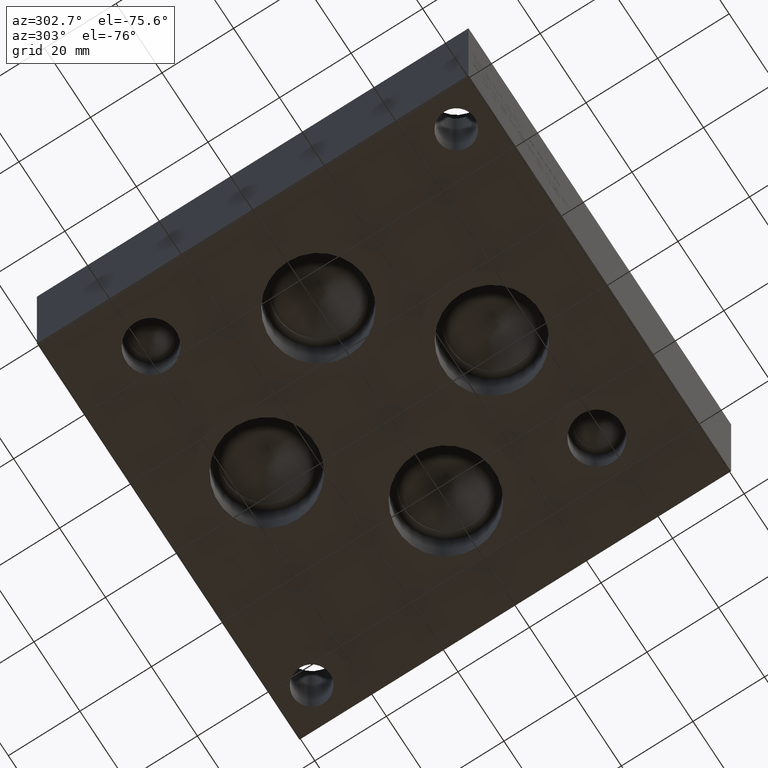
[diagram: clean part render]
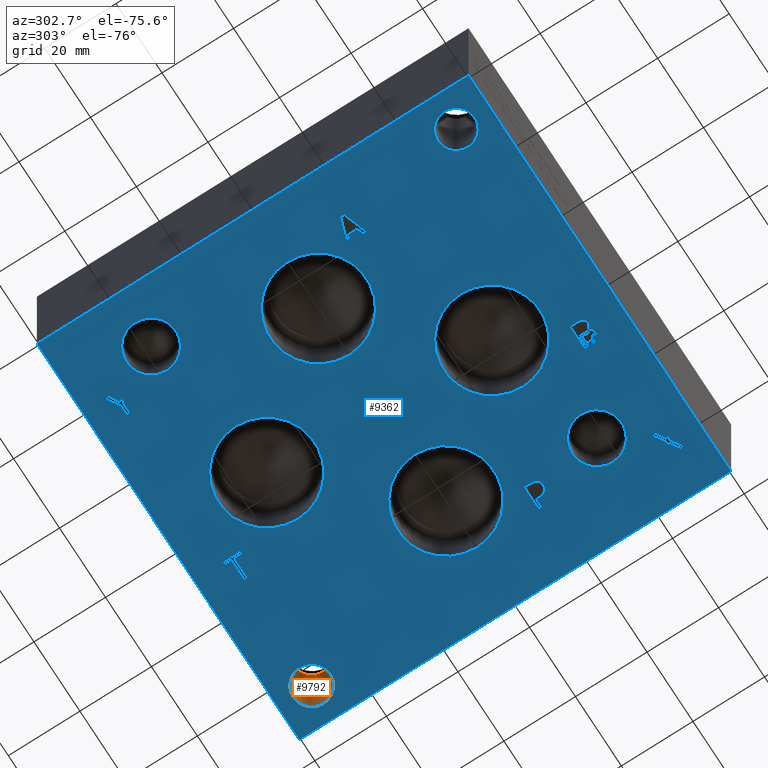
[diagram: same view with the hole feature highlighted: cylindrical wall and planar end face, labeled with their STEP entity ids]
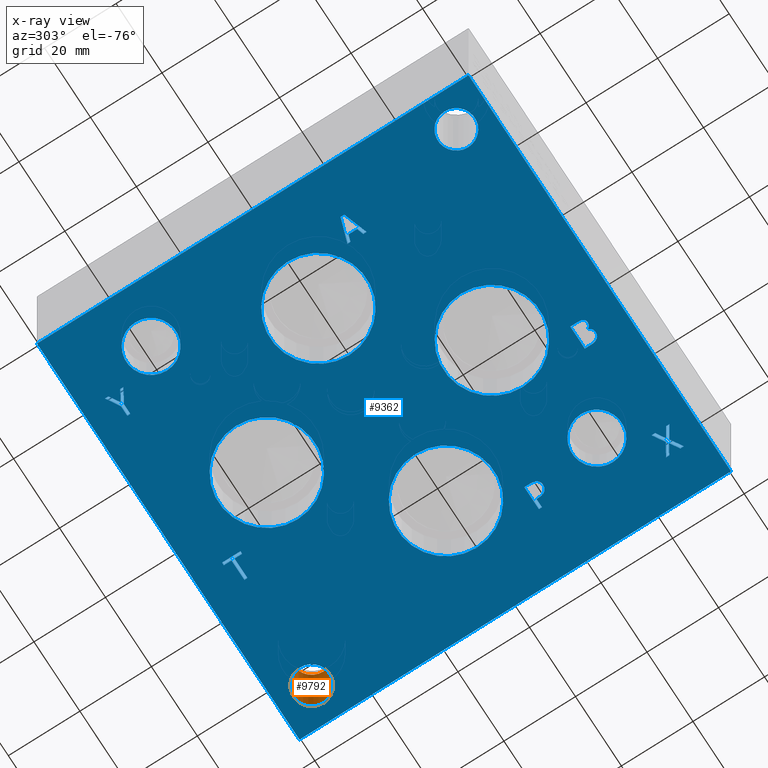
[diagram: x-ray of the same camera — body ghosted, the hole faces saturated]
A machine part, auxiliary view. The highlighted faces form one hole feature of diameter 10.3124 mm: the cylindrical wall (entity #9792, orange) and its adjacent planar end face (entity #9362, blue) — they share a circular edge in the B-rep.
The next image is the same camera in x-ray (body ghosted, the hole faces saturated) — the bore reads through the body.
Wall:
#43=CYLINDRICAL_SURFACE('',#10285,5.1562);
#73=CIRCLE('',#9870,5.1562);
#163=CIRCLE('',#10281,5.1562);
#1087=FACE_OUTER_BOUND('',#1640,.T.);
#1640=EDGE_LOOP('',(#8510,#8511,#8512,#8513));
#2642=LINE('',#16544,#3631);
#3631=VECTOR('',#12223,5.1562);
#3768=VERTEX_POINT('',#12797);
#4544=VERTEX_POINT('',#16535);
#4733=EDGE_CURVE('',#3768,#3768,#73,.T.);
#5876=EDGE_CURVE('',#4544,#4544,#163,.T.);
#5880=EDGE_CURVE('',#4544,#3768,#2642,.T.);
#8510=ORIENTED_EDGE('',*,*,#5876,.T.);
#8511=ORIENTED_EDGE('',*,*,#5880,.T.);
#8512=ORIENTED_EDGE('',*,*,#4733,.F.);
#8513=ORIENTED_EDGE('',*,*,#5880,.F.);
#9792=ADVANCED_FACE('',(#1087),#43,.F.);
#9870=AXIS2_PLACEMENT_3D('',#12798,#10551,#10552);
#10281=AXIS2_PLACEMENT_3D('',#16536,#12212,#12213);
#10285=AXIS2_PLACEMENT_3D('',#16543,#12221,#12222);
#10551=DIRECTION('center_axis',(0.,0.,1.));
#10552=DIRECTION('ref_axis',(1.,0.,0.));
#12212=DIRECTION('center_axis',(0.,0.,1.));
#12213=DIRECTION('ref_axis',(1.,0.,0.));
#12221=DIRECTION('center_axis',(0.,0.,1.));
#12222=DIRECTION('ref_axis',(1.,0.,0.));
#12223=DIRECTION('',(0.,0.,-1.));
#12797=CARTESIAN_POINT('',(99.6188,111.125,0.));
#12798=CARTESIAN_POINT('Origin',(104.775,111.125,0.));
#16535=CARTESIAN_POINT('',(99.6188,111.125,30.1752));
#16536=CARTESIAN_POINT('Origin',(104.775,111.125,30.1752));
#16543=CARTESIAN_POINT('Origin',(104.775,111.125,-127.58695823863));
#16544=CARTESIAN_POINT('',(99.6188,111.125,-127.58695823863));
End face:
#60=CIRCLE('',#9857,6.9342);
#61=CIRCLE('',#9858,6.9342);
#62=CIRCLE('',#9859,6.9342);
#63=CIRCLE('',#9860,6.9342);
#64=CIRCLE('',#9861,13.462);
#65=CIRCLE('',#9862,13.462);
#66=CIRCLE('',#9863,13.462);
#67=CIRCLE('',#9864,13.462);
#68=CIRCLE('',#9865,13.462);
#69=CIRCLE('',#9866,13.462);
#70=CIRCLE('',#9867,13.462);
#71=CIRCLE('',#9868,13.462);
#72=CIRCLE('',#9869,5.1562);
#73=CIRCLE('',#9870,5.1562);
#168=FACE_BOUND('',#1154,.T.);
#169=FACE_BOUND('',#1155,.T.);
#170=FACE_BOUND('',#1156,.T.);
#171=FACE_BOUND('',#1157,.T.);
#172=FACE_BOUND('',#1158,.T.);
#173=FACE_BOUND('',#1159,.T.);
#174=FACE_BOUND('',#1160,.T.);
#175=FACE_BOUND('',#1161,.T.);
#176=FACE_BOUND('',#1162,.T.);
#177=FACE_BOUND('',#1163,.T.);
#178=FACE_BOUND('',#1164,.T.);
#179=FACE_BOUND('',#1165,.T.);
#180=FACE_BOUND('',#1166,.T.);
#181=FACE_BOUND('',#1167,.T.);
#253=B_SPLINE_CURVE_WITH_KNOTS('',2,(#12617,#12618,#12619,#12620),
 .UNSPECIFIED.,.F.,.F.,(3,1,3),(0.,1.,2.),.UNSPECIFIED.);
#255=B_SPLINE_CURVE_WITH_KNOTS('',2,(#12644,#12645,#12646,#12647),
 .UNSPECIFIED.,.F.,.F.,(3,1,3),(0.,1.,2.),.UNSPECIFIED.);
#257=B_SPLINE_CURVE_WITH_KNOTS('',2,(#12663,#12664,#12665,#12666),
 .UNSPECIFIED.,.F.,.F.,(3,1,3),(0.,1.,2.),.UNSPECIFIED.);
#259=B_SPLINE_CURVE_WITH_KNOTS('',2,(#12682,#12683,#12684,#12685),
 .UNSPECIFIED.,.F.,.F.,(3,1,3),(0.,1.,2.),.UNSPECIFIED.);
#261=B_SPLINE_CURVE_WITH_KNOTS('',2,(#12719,#12720,#12721,#12722),
 .UNSPECIFIED.,.F.,.F.,(3,1,3),(0.,1.,2.),.UNSPECIFIED.);
#263=B_SPLINE_CURVE_WITH_KNOTS('',2,(#12737,#12738,#12739,#12740),
 .UNSPECIFIED.,.F.,.F.,(3,1,3),(0.,1.,2.),.UNSPECIFIED.);
#265=B_SPLINE_CURVE_WITH_KNOTS('',2,(#12801,#12802,#12803,#12804),
 .UNSPECIFIED.,.F.,.F.,(3,1,3),(0.,1.,2.),.UNSPECIFIED.);
#266=B_SPLINE_CURVE_WITH_KNOTS('',2,(#12806,#12807,#12808,#12809),
 .UNSPECIFIED.,.F.,.F.,(3,1,3),(0.,1.,2.),.UNSPECIFIED.);
#267=B_SPLINE_CURVE_WITH_KNOTS('',2,(#12811,#12812,#12813,#12814),
 .UNSPECIFIED.,.F.,.F.,(3,1,3),(0.,1.,2.),.UNSPECIFIED.);
#268=B_SPLINE_CURVE_WITH_KNOTS('',2,(#12825,#12826,#12827,#12828),
 .UNSPECIFIED.,.F.,.F.,(3,1,3),(0.,1.,2.),.UNSPECIFIED.);
#657=FACE_OUTER_BOUND('',#1153,.T.);
#1153=EDGE_LOOP('',(#6151,#6152,#6153,#6154));
#1154=EDGE_LOOP('',(#6155,#6156,#6157,#6158,#6159,#6160,#6161,#6162,#6163,
#6164,#6165,#6166));
#1155=EDGE_LOOP('',(#6167,#6168,#6169,#6170,#6171,#6172,#6173,#6174,#6175));
#1156=EDGE_LOOP('',(#6176,#6177,#6178,#6179,#6180,#6181,#6182,#6183));
#1157=EDGE_LOOP('',(#6184,#6185,#6186,#6187,#6188,#6189,#6190,#6191,#6192,
#6193));
#1158=EDGE_LOOP('',(#6194,#6195,#6196,#6197,#6198,#6199,#6200,#6201));
#1159=EDGE_LOOP('',(#6202,#6203));
#1160=EDGE_LOOP('',(#6204,#6205));
#1161=EDGE_LOOP('',(#6206,#6207));
#1162=EDGE_LOOP('',(#6208,#6209));
#1163=EDGE_LOOP('',(#6210,#6211));
#1164=EDGE_LOOP('',(#6212,#6213));
#1165=EDGE_LOOP('',(#6214));
#1166=EDGE_LOOP('',(#6215));
#1167=EDGE_LOOP('',(#6216,#6217,#6218,#6219,#6220,#6221,#6222,#6223,#6224));
#1659=LINE('',#12245,#2648);
#1663=LINE('',#12253,#2652);
#1666=LINE('',#12259,#2655);
#1669=LINE('',#12265,#2658);
#1672=LINE('',#12271,#2661);
#1675=LINE('',#12277,#2664);
#1678=LINE('',#12283,#2667);
#1681=LINE('',#12289,#2670);
#1684=LINE('',#12295,#2673);
#1687=LINE('',#12301,#2676);
#1690=LINE('',#12307,#2679);
#1693=LINE('',#12312,#2682);
#1695=LINE('',#12318,#2684);
#1699=LINE('',#12326,#2688);
#1702=LINE('',#12332,#2691);
#1705=LINE('',#12338,#2694);
#1708=LINE('',#12344,#2697);
#1711=LINE('',#12350,#2700);
#1714=LINE('',#12356,#2703);
#1717=LINE('',#12362,#2706);
#1720=LINE('',#12367,#2709);
#1722=LINE('',#12373,#2711);
#1726=LINE('',#12381,#2715);
#1729=LINE('',#12387,#2718);
#1732=LINE('',#12393,#2721);
#1735=LINE('',#12399,#2724);
#1738=LINE('',#12405,#2727);
#1741=LINE('',#12411,#2730);
#1744=LINE('',#12416,#2733);
#1774=LINE('',#12631,#2763);
#1780=LINE('',#12694,#2769);
#1783=LINE('',#12700,#2772);
#1786=LINE('',#12706,#2775);
#1790=LINE('',#12749,#2779);
#1791=LINE('',#12751,#2780);
#1792=LINE('',#12753,#2781);
#1793=LINE('',#12754,#2782);
#1794=LINE('',#12757,#2783);
#1795=LINE('',#12759,#2784);
#1796=LINE('',#12761,#2785);
#1797=LINE('',#12763,#2786);
#1798=LINE('',#12765,#2787);
#1799=LINE('',#12767,#2788);
#1800=LINE('',#12769,#2789);
#1801=LINE('',#12770,#2790);
#1802=LINE('',#12816,#2791);
#1803=LINE('',#12818,#2792);
#1804=LINE('',#12820,#2793);
#1805=LINE('',#12822,#2794);
#1806=LINE('',#12824,#2795);
#2648=VECTOR('',#10296,10.);
#2652=VECTOR('',#10302,10.);
#2655=VECTOR('',#10307,10.);
#2658=VECTOR('',#10312,10.);
#2661=VECTOR('',#10317,10.);
#2664=VECTOR('',#10322,10.);
#2667=VECTOR('',#10327,10.);
#2670=VECTOR('',#10332,10.);
#2673=VECTOR('',#10337,10.);
#2676=VECTOR('',#10342,10.);
#2679=VECTOR('',#10347,10.);
#2682=VECTOR('',#10352,10.);
#2684=VECTOR('',#10358,10.);
#2688=VECTOR('',#10364,10.);
#2691=VECTOR('',#10369,10.);
#2694=VECTOR('',#10374,10.);
#2697=VECTOR('',#10379,10.);
#2700=VECTOR('',#10384,10.);
#2703=VECTOR('',#10389,10.);
#2706=VECTOR('',#10394,10.);
#2709=VECTOR('',#10399,10.);
#2711=VECTOR('',#10405,10.);
#2715=VECTOR('',#10411,10.);
#2718=VECTOR('',#10416,10.);
#2721=VECTOR('',#10421,10.);
#2724=VECTOR('',#10426,10.);
#2727=VECTOR('',#10431,10.);
#2730=VECTOR('',#10436,10.);
#2733=VECTOR('',#10441,10.);
#2763=VECTOR('',#10487,10.);
#2769=VECTOR('',#10495,10.);
#2772=VECTOR('',#10500,10.);
#2775=VECTOR('',#10505,10.);
#2779=VECTOR('',#10513,10.);
#2780=VECTOR('',#10514,10.);
#2781=VECTOR('',#10515,10.);
#2782=VECTOR('',#10516,10.);
#2783=VECTOR('',#10517,10.);
#2784=VECTOR('',#10518,10.);
#2785=VECTOR('',#10519,10.);
#2786=VECTOR('',#10520,10.);
#2787=VECTOR('',#10521,10.);
#2788=VECTOR('',#10522,10.);
#2789=VECTOR('',#10523,10.);
#2790=VECTOR('',#10524,10.);
#2791=VECTOR('',#10553,10.);
#2792=VECTOR('',#10554,10.);
#2793=VECTOR('',#10555,10.);
#2794=VECTOR('',#10556,10.);
#2795=VECTOR('',#10557,10.);
#3637=VERTEX_POINT('',#12243);
#3638=VERTEX_POINT('',#12244);
#3641=VERTEX_POINT('',#12252);
#3643=VERTEX_POINT('',#12258);
#3645=VERTEX_POINT('',#12264);
#3647=VERTEX_POINT('',#12270);
#3649=VERTEX_POINT('',#12276);
#3651=VERTEX_POINT('',#12282);
#3653=VERTEX_POINT('',#12288);
#3655=VERTEX_POINT('',#12294);
#3657=VERTEX_POINT('',#12300);
#3659=VERTEX_POINT('',#12306);
#3661=VERTEX_POINT('',#12316);
#3662=VERTEX_POINT('',#12317);
#3665=VERTEX_POINT('',#12325);
#3667=VERTEX_POINT('',#12331);
#3669=VERTEX_POINT('',#12337);
#3671=VERTEX_POINT('',#12343);
#3673=VERTEX_POINT('',#12349);
#3675=VERTEX_POINT('',#12355);
#3677=VERTEX_POINT('',#12361);
#3679=VERTEX_POINT('',#12371);
#3680=VERTEX_POINT('',#12372);
#3683=VERTEX_POINT('',#12380);
#3685=VERTEX_POINT('',#12386);
#3687=VERTEX_POINT('',#12392);
#3689=VERTEX_POINT('',#12398);
#3691=VERTEX_POINT('',#12404);
#3693=VERTEX_POINT('',#12410);
#3723=VERTEX_POINT('',#12615);
#3724=VERTEX_POINT('',#12616);
#3727=VERTEX_POINT('',#12630);
#3729=VERTEX_POINT('',#12643);
#3731=VERTEX_POINT('',#12662);
#3733=VERTEX_POINT('',#12681);
#3735=VERTEX_POINT('',#12693);
#3737=VERTEX_POINT('',#12699);
#3739=VERTEX_POINT('',#12705);
#3741=VERTEX_POINT('',#12718);
#3743=VERTEX_POINT('',#12747);
#3744=VERTEX_POINT('',#12748);
#3745=VERTEX_POINT('',#12750);
#3746=VERTEX_POINT('',#12752);
#3747=VERTEX_POINT('',#12755);
#3748=VERTEX_POINT('',#12756);
#3749=VERTEX_POINT('',#12758);
#3750=VERTEX_POINT('',#12760);
#3751=VERTEX_POINT('',#12762);
#3752=VERTEX_POINT('',#12764);
#3753=VERTEX_POINT('',#12766);
#3754=VERTEX_POINT('',#12768);
#3755=VERTEX_POINT('',#12771);
#3756=VERTEX_POINT('',#12772);
#3757=VERTEX_POINT('',#12775);
#3758=VERTEX_POINT('',#12776);
#3759=VERTEX_POINT('',#12779);
#3760=VERTEX_POINT('',#12780);
#3761=VERTEX_POINT('',#12783);
#3762=VERTEX_POINT('',#12784);
#3763=VERTEX_POINT('',#12787);
#3764=VERTEX_POINT('',#12788);
#3765=VERTEX_POINT('',#12791);
#3766=VERTEX_POINT('',#12792);
#3767=VERTEX_POINT('',#12795);
#3768=VERTEX_POINT('',#12797);
#3769=VERTEX_POINT('',#12799);
#3770=VERTEX_POINT('',#12800);
#3771=VERTEX_POINT('',#12805);
#3772=VERTEX_POINT('',#12810);
#3773=VERTEX_POINT('',#12815);
#3774=VERTEX_POINT('',#12817);
#3775=VERTEX_POINT('',#12819);
#3776=VERTEX_POINT('',#12821);
#3777=VERTEX_POINT('',#12823);
#4549=EDGE_CURVE('',#3637,#3638,#1659,.T.);
#4553=EDGE_CURVE('',#3641,#3637,#1663,.T.);
#4556=EDGE_CURVE('',#3643,#3641,#1666,.T.);
#4559=EDGE_CURVE('',#3645,#3643,#1669,.T.);
#4562=EDGE_CURVE('',#3647,#3645,#1672,.T.);
#4565=EDGE_CURVE('',#3649,#3647,#1675,.T.);
#4568=EDGE_CURVE('',#3651,#3649,#1678,.T.);
#4571=EDGE_CURVE('',#3653,#3651,#1681,.T.);
#4574=EDGE_CURVE('',#3655,#3653,#1684,.T.);
#4577=EDGE_CURVE('',#3657,#3655,#1687,.T.);
#4580=EDGE_CURVE('',#3659,#3657,#1690,.T.);
#4583=EDGE_CURVE('',#3638,#3659,#1693,.T.);
#4585=EDGE_CURVE('',#3661,#3662,#1695,.T.);
#4589=EDGE_CURVE('',#3665,#3661,#1699,.T.);
#4592=EDGE_CURVE('',#3667,#3665,#1702,.T.);
#4595=EDGE_CURVE('',#3669,#3667,#1705,.T.);
#4598=EDGE_CURVE('',#3671,#3669,#1708,.T.);
#4601=EDGE_CURVE('',#3673,#3671,#1711,.T.);
#4604=EDGE_CURVE('',#3675,#3673,#1714,.T.);
#4607=EDGE_CURVE('',#3677,#3675,#1717,.T.);
#4610=EDGE_CURVE('',#3662,#3677,#1720,.T.);
#4612=EDGE_CURVE('',#3679,#3680,#1722,.T.);
#4616=EDGE_CURVE('',#3683,#3679,#1726,.T.);
#4619=EDGE_CURVE('',#3685,#3683,#1729,.T.);
#4622=EDGE_CURVE('',#3687,#3685,#1732,.T.);
#4625=EDGE_CURVE('',#3689,#3687,#1735,.T.);
#4628=EDGE_CURVE('',#3691,#3689,#1738,.T.);
#4631=EDGE_CURVE('',#3693,#3691,#1741,.T.);
#4634=EDGE_CURVE('',#3680,#3693,#1744,.T.);
#4678=EDGE_CURVE('',#3723,#3724,#253,.T.);
#4682=EDGE_CURVE('',#3727,#3723,#1774,.T.);
#4685=EDGE_CURVE('',#3729,#3727,#255,.T.);
#4688=EDGE_CURVE('',#3731,#3729,#257,.T.);
#4691=EDGE_CURVE('',#3733,#3731,#259,.T.);
#4694=EDGE_CURVE('',#3735,#3733,#1780,.T.);
#4697=EDGE_CURVE('',#3737,#3735,#1783,.T.);
#4700=EDGE_CURVE('',#3739,#3737,#1786,.T.);
#4703=EDGE_CURVE('',#3741,#3739,#261,.T.);
#4706=EDGE_CURVE('',#3724,#3741,#263,.T.);
#4708=EDGE_CURVE('',#3743,#3744,#1790,.T.);
#4709=EDGE_CURVE('',#3745,#3743,#1791,.T.);
#4710=EDGE_CURVE('',#3746,#3745,#1792,.T.);
#4711=EDGE_CURVE('',#3744,#3746,#1793,.T.);
#4712=EDGE_CURVE('',#3747,#3748,#1794,.T.);
#4713=EDGE_CURVE('',#3748,#3749,#1795,.T.);
#4714=EDGE_CURVE('',#3749,#3750,#1796,.T.);
#4715=EDGE_CURVE('',#3750,#3751,#1797,.T.);
#4716=EDGE_CURVE('',#3751,#3752,#1798,.T.);
#4717=EDGE_CURVE('',#3752,#3753,#1799,.T.);
#4718=EDGE_CURVE('',#3753,#3754,#1800,.T.);
#4719=EDGE_CURVE('',#3754,#3747,#1801,.T.);
#4720=EDGE_CURVE('',#3755,#3756,#60,.T.);
#4721=EDGE_CURVE('',#3756,#3755,#61,.T.);
#4722=EDGE_CURVE('',#3757,#3758,#62,.T.);
#4723=EDGE_CURVE('',#3758,#3757,#63,.T.);
#4724=EDGE_CURVE('',#3759,#3760,#64,.T.);
#4725=EDGE_CURVE('',#3760,#3759,#65,.T.);
#4726=EDGE_CURVE('',#3761,#3762,#66,.T.);
#4727=EDGE_CURVE('',#3762,#3761,#67,.T.);
#4728=EDGE_CURVE('',#3763,#3764,#68,.T.);
#4729=EDGE_CURVE('',#3764,#3763,#69,.T.);
#4730=EDGE_CURVE('',#3765,#3766,#70,.T.);
#4731=EDGE_CURVE('',#3766,#3765,#71,.T.);
#4732=EDGE_CURVE('',#3767,#3767,#72,.T.);
#4733=EDGE_CURVE('',#3768,#3768,#73,.T.);
#4734=EDGE_CURVE('',#3769,#3770,#265,.T.);
#4735=EDGE_CURVE('',#3770,#3771,#266,.T.);
#4736=EDGE_CURVE('',#3771,#3772,#267,.T.);
#4737=EDGE_CURVE('',#3772,#3773,#1802,.T.);
#4738=EDGE_CURVE('',#3773,#3774,#1803,.T.);
#4739=EDGE_CURVE('',#3774,#3775,#1804,.T.);
#4740=EDGE_CURVE('',#3775,#3776,#1805,.T.);
#4741=EDGE_CURVE('',#3776,#3777,#1806,.T.);
#4742=EDGE_CURVE('',#3777,#3769,#268,.T.);
#6151=ORIENTED_EDGE('',*,*,#4708,.F.);
#6152=ORIENTED_EDGE('',*,*,#4709,.F.);
#6153=ORIENTED_EDGE('',*,*,#4710,.F.);
#6154=ORIENTED_EDGE('',*,*,#4711,.F.);
#6155=ORIENTED_EDGE('',*,*,#4549,.T.);
#6156=ORIENTED_EDGE('',*,*,#4583,.T.);
#6157=ORIENTED_EDGE('',*,*,#4580,.T.);
#6158=ORIENTED_EDGE('',*,*,#4577,.T.);
#6159=ORIENTED_EDGE('',*,*,#4574,.T.);
#6160=ORIENTED_EDGE('',*,*,#4571,.T.);
#6161=ORIENTED_EDGE('',*,*,#4568,.T.);
#6162=ORIENTED_EDGE('',*,*,#4565,.T.);
#6163=ORIENTED_EDGE('',*,*,#4562,.T.);
#6164=ORIENTED_EDGE('',*,*,#4559,.T.);
#6165=ORIENTED_EDGE('',*,*,#4556,.T.);
#6166=ORIENTED_EDGE('',*,*,#4553,.T.);
#6167=ORIENTED_EDGE('',*,*,#4585,.T.);
#6168=ORIENTED_EDGE('',*,*,#4610,.T.);
#6169=ORIENTED_EDGE('',*,*,#4607,.T.);
#6170=ORIENTED_EDGE('',*,*,#4604,.T.);
#6171=ORIENTED_EDGE('',*,*,#4601,.T.);
#6172=ORIENTED_EDGE('',*,*,#4598,.T.);
#6173=ORIENTED_EDGE('',*,*,#4595,.T.);
#6174=ORIENTED_EDGE('',*,*,#4592,.T.);
#6175=ORIENTED_EDGE('',*,*,#4589,.T.);
#6176=ORIENTED_EDGE('',*,*,#4612,.T.);
#6177=ORIENTED_EDGE('',*,*,#4634,.T.);
#6178=ORIENTED_EDGE('',*,*,#4631,.T.);
#6179=ORIENTED_EDGE('',*,*,#4628,.T.);
#6180=ORIENTED_EDGE('',*,*,#4625,.T.);
#6181=ORIENTED_EDGE('',*,*,#4622,.T.);
#6182=ORIENTED_EDGE('',*,*,#4619,.T.);
#6183=ORIENTED_EDGE('',*,*,#4616,.T.);
#6184=ORIENTED_EDGE('',*,*,#4678,.T.);
#6185=ORIENTED_EDGE('',*,*,#4706,.T.);
#6186=ORIENTED_EDGE('',*,*,#4703,.T.);
#6187=ORIENTED_EDGE('',*,*,#4700,.T.);
#6188=ORIENTED_EDGE('',*,*,#4697,.T.);
#6189=ORIENTED_EDGE('',*,*,#4694,.T.);
#6190=ORIENTED_EDGE('',*,*,#4691,.T.);
#6191=ORIENTED_EDGE('',*,*,#4688,.T.);
#6192=ORIENTED_EDGE('',*,*,#4685,.T.);
#6193=ORIENTED_EDGE('',*,*,#4682,.T.);
#6194=ORIENTED_EDGE('',*,*,#4712,.T.);
#6195=ORIENTED_EDGE('',*,*,#4713,.T.);
#6196=ORIENTED_EDGE('',*,*,#4714,.T.);
#6197=ORIENTED_EDGE('',*,*,#4715,.T.);
#6198=ORIENTED_EDGE('',*,*,#4716,.T.);
#6199=ORIENTED_EDGE('',*,*,#4717,.T.);
#6200=ORIENTED_EDGE('',*,*,#4718,.T.);
#6201=ORIENTED_EDGE('',*,*,#4719,.T.);
#6202=ORIENTED_EDGE('',*,*,#4720,.T.);
#6203=ORIENTED_EDGE('',*,*,#4721,.T.);
#6204=ORIENTED_EDGE('',*,*,#4722,.T.);
#6205=ORIENTED_EDGE('',*,*,#4723,.T.);
#6206=ORIENTED_EDGE('',*,*,#4724,.T.);
#6207=ORIENTED_EDGE('',*,*,#4725,.T.);
#6208=ORIENTED_EDGE('',*,*,#4726,.T.);
#6209=ORIENTED_EDGE('',*,*,#4727,.T.);
#6210=ORIENTED_EDGE('',*,*,#4728,.T.);
#6211=ORIENTED_EDGE('',*,*,#4729,.T.);
#6212=ORIENTED_EDGE('',*,*,#4730,.T.);
#6213=ORIENTED_EDGE('',*,*,#4731,.T.);
#6214=ORIENTED_EDGE('',*,*,#4732,.T.);
#6215=ORIENTED_EDGE('',*,*,#4733,.T.);
#6216=ORIENTED_EDGE('',*,*,#4734,.T.);
#6217=ORIENTED_EDGE('',*,*,#4735,.T.);
#6218=ORIENTED_EDGE('',*,*,#4736,.T.);
#6219=ORIENTED_EDGE('',*,*,#4737,.T.);
#6220=ORIENTED_EDGE('',*,*,#4738,.T.);
#6221=ORIENTED_EDGE('',*,*,#4739,.T.);
#6222=ORIENTED_EDGE('',*,*,#4740,.T.);
#6223=ORIENTED_EDGE('',*,*,#4741,.T.);
#6224=ORIENTED_EDGE('',*,*,#4742,.T.);
#8603=PLANE('',#9856);
#9362=ADVANCED_FACE('',(#657,#168,#169,#170,#171,#172,#173,#174,#175,#176,
#177,#178,#179,#180,#181),#8603,.F.);
#9856=AXIS2_PLACEMENT_3D('',#12746,#10511,#10512);
#9857=AXIS2_PLACEMENT_3D('',#12773,#10525,#10526);
#9858=AXIS2_PLACEMENT_3D('',#12774,#10527,#10528);
#9859=AXIS2_PLACEMENT_3D('',#12777,#10529,#10530);
#9860=AXIS2_PLACEMENT_3D('',#12778,#10531,#10532);
#9861=AXIS2_PLACEMENT_3D('',#12781,#10533,#10534);
#9862=AXIS2_PLACEMENT_3D('',#12782,#10535,#10536);
#9863=AXIS2_PLACEMENT_3D('',#12785,#10537,#10538);
#9864=AXIS2_PLACEMENT_3D('',#12786,#10539,#10540);
#9865=AXIS2_PLACEMENT_3D('',#12789,#10541,#10542);
#9866=AXIS2_PLACEMENT_3D('',#12790,#10543,#10544);
#9867=AXIS2_PLACEMENT_3D('',#12793,#10545,#10546);
#9868=AXIS2_PLACEMENT_3D('',#12794,#10547,#10548);
#9869=AXIS2_PLACEMENT_3D('',#12796,#10549,#10550);
#9870=AXIS2_PLACEMENT_3D('',#12798,#10551,#10552);
#10296=DIRECTION('',(0.851191118645099,-0.524855865490427,0.));
#10302=DIRECTION('',(0.844232761378654,0.535976720217374,0.));
#10307=DIRECTION('',(0.,-1.,0.));
#10312=DIRECTION('',(-0.849477082513831,-0.527625517089337,0.));
#10317=DIRECTION('',(0.854198555614442,-0.51994694689574,0.));
#10322=DIRECTION('',(0.,-1.,0.));
#10327=DIRECTION('',(-0.850471045146921,0.526021863962615,0.));
#10332=DIRECTION('',(-0.843830115736992,-0.536610413405568,0.));
#10337=DIRECTION('',(0.,1.,0.));
#10342=DIRECTION('',(0.849159811848735,0.528135980540069,0.));
#10347=DIRECTION('',(-0.853796175794036,0.520607424264656,0.));
#10352=DIRECTION('',(0.,1.,0.));
#10358=DIRECTION('',(2.4798900044583E-15,-1.,0.));
#10364=DIRECTION('',(-0.858746256029891,-0.512401080946015,0.));
#10369=DIRECTION('',(0.862913061259439,-0.505352400516575,0.));
#10374=DIRECTION('',(2.37088385041625E-15,-1.,0.));
#10379=DIRECTION('',(-0.860707703064185,0.509099449897537,0.));
#10384=DIRECTION('',(-1.,-6.52553286617392E-15,0.));
#10389=DIRECTION('',(0.,1.,0.));
#10394=DIRECTION('',(1.,0.,0.));
#10399=DIRECTION('',(0.855181135397278,0.518329263750969,0.));
#10405=DIRECTION('',(-1.0524411238433E-14,1.,0.));
#10411=DIRECTION('',(1.,3.17280044688052E-15,0.));
#10416=DIRECTION('',(0.,1.,0.));
#10421=DIRECTION('',(1.,0.,0.));
#10426=DIRECTION('',(1.73992282570866E-15,-1.,0.));
#10431=DIRECTION('',(-1.,0.,0.));
#10436=DIRECTION('',(0.,1.,0.));
#10441=DIRECTION('',(-1.,0.,0.));
#10487=DIRECTION('',(1.,0.,0.));
#10495=DIRECTION('',(0.,-1.,0.));
#10500=DIRECTION('',(-1.,-2.79741238752512E-15,0.));
#10505=DIRECTION('',(0.,1.,0.));
#10511=DIRECTION('center_axis',(0.,0.,1.));
#10512=DIRECTION('ref_axis',(1.,0.,0.));
#10513=DIRECTION('',(1.,0.,0.));
#10514=DIRECTION('',(0.,-1.,0.));
#10515=DIRECTION('',(-1.,0.,0.));
#10516=DIRECTION('',(0.,1.,0.));
#10517=DIRECTION('',(0.,1.,0.));
#10518=DIRECTION('',(-0.947602739606771,-0.319451166674568,0.));
#10519=DIRECTION('',(0.,-1.,0.));
#10520=DIRECTION('',(0.947602739606771,-0.319451166674567,0.));
#10521=DIRECTION('',(0.,1.,0.));
#10522=DIRECTION('',(-0.951135317488761,0.308774363938383,0.));
#10523=DIRECTION('',(-3.6645508346136E-15,1.,0.));
#10524=DIRECTION('',(0.951135317488761,0.308774363938383,0.));
#10525=DIRECTION('center_axis',(0.,0.,1.));
#10526=DIRECTION('ref_axis',(1.,0.,0.));
#10527=DIRECTION('center_axis',(0.,0.,1.));
#10528=DIRECTION('ref_axis',(1.,0.,0.));
#10529=DIRECTION('center_axis',(0.,0.,1.));
#10530=DIRECTION('ref_axis',(1.,0.,0.));
#10531=DIRECTION('center_axis',(0.,0.,1.));
#10532=DIRECTION('ref_axis',(1.,0.,0.));
#10533=DIRECTION('center_axis',(0.,0.,1.));
#10534=DIRECTION('ref_axis',(1.,0.,0.));
#10535=DIRECTION('center_axis',(0.,0.,1.));
#10536=DIRECTION('ref_axis',(1.,0.,0.));
#10537=DIRECTION('center_axis',(0.,0.,1.));
#10538=DIRECTION('ref_axis',(1.,0.,0.));
#10539=DIRECTION('center_axis',(0.,0.,1.));
#10540=DIRECTION('ref_axis',(1.,0.,0.));
#10541=DIRECTION('center_axis',(0.,0.,1.));
#10542=DIRECTION('ref_axis',(1.,0.,0.));
#10543=DIRECTION('center_axis',(0.,0.,1.));
#10544=DIRECTION('ref_axis',(1.,0.,0.));
#10545=DIRECTION('center_axis',(0.,0.,1.));
#10546=DIRECTION('ref_axis',(1.,0.,0.));
#10547=DIRECTION('center_axis',(0.,0.,1.));
#10548=DIRECTION('ref_axis',(1.,0.,0.));
#10549=DIRECTION('center_axis',(0.,0.,1.));
#10550=DIRECTION('ref_axis',(1.,0.,0.));
#10551=DIRECTION('center_axis',(0.,0.,1.));
#10552=DIRECTION('ref_axis',(1.,0.,0.));
#10553=DIRECTION('',(0.,1.,0.));
#10554=DIRECTION('',(1.,0.,0.));
#10555=DIRECTION('',(0.,1.,0.));
#10556=DIRECTION('',(-1.,0.,0.));
#10557=DIRECTION('',(0.,-1.,0.));
#12243=CARTESIAN_POINT('',(99.9534872444895,8.05344672322327,0.));
#12244=CARTESIAN_POINT('',(103.1748,6.06714205289251,0.));
#12245=CARTESIAN_POINT('',(72.7711331801187,24.8144509865573,0.));
#12252=CARTESIAN_POINT('',(96.8248000953675,6.06714205289249,0.));
#12253=CARTESIAN_POINT('',(94.9616555145602,4.88429039468257,0.));
#12258=CARTESIAN_POINT('',(96.8248000953675,6.97796051571256,0.));
#12259=CARTESIAN_POINT('',(96.8248000953675,33.6514802578563,0.));
#12264=CARTESIAN_POINT('',(99.3102538667917,8.52172062218726,0.));
#12265=CARTESIAN_POINT('',(95.7078605244805,6.28420922944737,0.));
#12270=CARTESIAN_POINT('',(96.8248000953675,10.0346055265324,0.));
#12271=CARTESIAN_POINT('',(71.1824026671564,25.6430213523998,0.));
#12276=CARTESIAN_POINT('',(96.8248000953675,11.0020285265899,0.));
#12277=CARTESIAN_POINT('',(96.8248000953675,35.663514263295,0.));
#12282=CARTESIAN_POINT('',(99.9946541806622,9.04145319136708,0.));
#12283=CARTESIAN_POINT('',(73.0285966581493,25.7201348733107,0.));
#12288=CARTESIAN_POINT('',(103.1748,11.0637789308489,0.));
#12289=CARTESIAN_POINT('',(97.9417756780721,7.73598191059377,0.));
#12294=CARTESIAN_POINT('',(103.1748,10.1529604680289,0.));
#12295=CARTESIAN_POINT('',(103.1748,35.2389802340144,0.));
#12300=CARTESIAN_POINT('',(100.643033425382,8.57832515942468,0.));
#12301=CARTESIAN_POINT('',(96.5656842259725,6.04241285247514,0.));
#12306=CARTESIAN_POINT('',(103.1748,7.03456505294998,0.));
#12307=CARTESIAN_POINT('',(74.5558961360091,24.4851161895298,0.));
#12312=CARTESIAN_POINT('',(103.1748,33.1960710264463,0.));
#12316=CARTESIAN_POINT('',(19.8628000953674,110.10611837741,0.));
#12317=CARTESIAN_POINT('',(19.8628000953674,109.210737515655,0.));
#12318=CARTESIAN_POINT('',(19.8628000953675,85.2155591887052,0.));
#12325=CARTESIAN_POINT('',(22.6570058880866,111.773379292403,0.));
#12326=CARTESIAN_POINT('',(24.0561286983567,112.608215002398,0.));
#12331=CARTESIAN_POINT('',(19.8628000953674,113.409765005266,0.));
#12332=CARTESIAN_POINT('',(45.3196523519611,98.5013321920126,0.));
#12337=CARTESIAN_POINT('',(19.8628000953674,114.346312803194,0.));
#12338=CARTESIAN_POINT('',(19.8628000953675,87.3356564015971,0.));
#12343=CARTESIAN_POINT('',(23.490636345583,112.200486255194,0.));
#12344=CARTESIAN_POINT('',(47.3239145653473,98.1033557337169,0.));
#12349=CARTESIAN_POINT('',(26.2128,112.200486255194,0.));
#12350=CARTESIAN_POINT('',(41.6813999999998,112.200486255195,0.));
#12355=CARTESIAN_POINT('',(26.2128,111.356564063655,0.));
#12356=CARTESIAN_POINT('',(26.2128,85.8407820318274,0.));
#12361=CARTESIAN_POINT('',(23.4031566062161,111.356564063655,0.));
#12362=CARTESIAN_POINT('',(40.276578303108,111.356564063655,0.));
#12367=CARTESIAN_POINT('',(22.662834859793,110.907851609791,0.));
#12371=CARTESIAN_POINT('',(74.6252,109.730634728547,0.));
#12372=CARTESIAN_POINT('',(74.6252,110.574556920086,0.));
#12373=CARTESIAN_POINT('',(74.6252000000003,85.0278173642736,0.));
#12380=CARTESIAN_POINT('',(69.0264966805185,109.730634728547,0.));
#12381=CARTESIAN_POINT('',(63.0882483402592,109.730634728547,0.));
#12386=CARTESIAN_POINT('',(69.0264966805185,107.600245781612,0.));
#12387=CARTESIAN_POINT('',(69.0264966805185,83.9626228908059,0.));
#12392=CARTESIAN_POINT('',(68.2752000953675,107.600245781612,0.));
#12393=CARTESIAN_POINT('',(62.7126000476837,107.600245781612,0.));
#12398=CARTESIAN_POINT('',(68.2752000953675,112.704945867022,0.));
#12399=CARTESIAN_POINT('',(68.2752000953675,86.5149729335108,0.));
#12404=CARTESIAN_POINT('',(69.0264966805185,112.704945867022,0.));
#12405=CARTESIAN_POINT('',(63.0882483402592,112.704945867022,0.));
#12410=CARTESIAN_POINT('',(69.0264966805185,110.574556920086,0.));
#12411=CARTESIAN_POINT('',(69.0264966805185,85.4497784600432,0.));
#12416=CARTESIAN_POINT('',(65.8876,110.574556920086,0.));
#12615=CARTESIAN_POINT('',(67.1136852231945,9.73212120722332,0.));
#12616=CARTESIAN_POINT('',(68.6934663988203,8.5434259252378,0.));
#12617=CARTESIAN_POINT('Ctrl Pts',(67.1136852231945,9.73212120722332,0.));
#12618=CARTESIAN_POINT('Ctrl Pts',(67.268061233842,9.16607583484926,0.));
#12619=CARTESIAN_POINT('Ctrl Pts',(68.0862540902736,8.5434259252378,0.));
#12620=CARTESIAN_POINT('Ctrl Pts',(68.6934663988203,8.5434259252378,0.));
#12630=CARTESIAN_POINT('',(67.082810021065,9.73212120722332,0.));
#12631=CARTESIAN_POINT('',(62.1164050105325,9.73212120722332,0.));
#12643=CARTESIAN_POINT('',(65.7243011273673,8.84188621248958,0.));
#12644=CARTESIAN_POINT('Ctrl Pts',(65.7243011273673,8.84188621248958,0.));
#12645=CARTESIAN_POINT('Ctrl Pts',(66.171991558245,8.84188621248958,0.));
#12646=CARTESIAN_POINT('Ctrl Pts',(66.8821212072233,9.31530597847515,0.));
#12647=CARTESIAN_POINT('Ctrl Pts',(67.082810021065,9.73212120722332,0.));
#12662=CARTESIAN_POINT('',(64.5510434464465,9.50055719125211,0.));
#12663=CARTESIAN_POINT('Ctrl Pts',(64.5510434464465,9.50055719125211,0.));
#12664=CARTESIAN_POINT('Ctrl Pts',(64.7311487922019,9.15578410080609,0.));
#12665=CARTESIAN_POINT('Ctrl Pts',(65.3229234996839,8.84188621248958,0.));
#12666=CARTESIAN_POINT('Ctrl Pts',(65.7243011273673,8.84188621248958,0.));
#12681=CARTESIAN_POINT('',(64.2937500953674,11.1678181062448,0.));
#12682=CARTESIAN_POINT('Ctrl Pts',(64.2937500953674,11.1678181062448,0.));
#12683=CARTESIAN_POINT('Ctrl Pts',(64.2937500953674,10.4885636593959,0.));
#12684=CARTESIAN_POINT('Ctrl Pts',(64.3812298347343,9.80930921254704,0.));
#12685=CARTESIAN_POINT('Ctrl Pts',(64.5510434464465,9.50055719125211,0.));
#12693=CARTESIAN_POINT('',(64.2937500953674,12.8505166223022,0.));
#12694=CARTESIAN_POINT('',(64.2937500953674,36.5877583111511,0.));
#12699=CARTESIAN_POINT('',(70.64375,12.8505166223022,0.));
#12700=CARTESIAN_POINT('',(63.8968750000001,12.8505166223022,0.));
#12705=CARTESIAN_POINT('',(70.64375,11.0288796966621,0.));
#12706=CARTESIAN_POINT('',(70.64375,35.676939848331,0.));
#12718=CARTESIAN_POINT('',(70.1291632978418,9.20209690400034,0.));
#12719=CARTESIAN_POINT('Ctrl Pts',(70.1291632978418,9.20209690400034,0.));
#12720=CARTESIAN_POINT('Ctrl Pts',(70.4070401170072,9.56230759551111,0.));
#12721=CARTESIAN_POINT('Ctrl Pts',(70.64375,10.3805004519427,0.));
#12722=CARTESIAN_POINT('Ctrl Pts',(70.64375,11.0288796966621,0.));
#12737=CARTESIAN_POINT('Ctrl Pts',(68.6934663988203,8.5434259252378,0.));
#12738=CARTESIAN_POINT('Ctrl Pts',(69.1668861648059,8.5434259252378,0.));
#12739=CARTESIAN_POINT('Ctrl Pts',(69.892453414849,8.90363661674857,0.));
#12740=CARTESIAN_POINT('Ctrl Pts',(70.1291632978418,9.20209690400034,0.));
#12746=CARTESIAN_POINT('Origin',(57.15,60.325,0.));
#12747=CARTESIAN_POINT('',(0.,0.,0.));
#12748=CARTESIAN_POINT('',(114.3,0.,0.));
#12749=CARTESIAN_POINT('',(0.,0.,0.));
#12750=CARTESIAN_POINT('',(0.,120.65,0.));
#12751=CARTESIAN_POINT('',(0.,120.65,0.));
#12752=CARTESIAN_POINT('',(114.3,120.65,0.));
#12753=CARTESIAN_POINT('',(114.3,120.65,0.));
#12754=CARTESIAN_POINT('',(114.3,0.,0.));
#12755=CARTESIAN_POINT('',(19.05,45.22445301059,0.));
#12756=CARTESIAN_POINT('',(19.05,46.0786669361727,0.));
#12757=CARTESIAN_POINT('',(19.05,52.774726505295,0.));
#12758=CARTESIAN_POINT('',(12.7000000953674,43.9379862551944,0.));
#12759=CARTESIAN_POINT('',(38.3122393285097,52.5722581522667,0.));
#12760=CARTESIAN_POINT('',(12.7000000953674,42.8985211168348,0.));
#12761=CARTESIAN_POINT('',(12.7000000953674,52.1314931275972,0.));
#12762=CARTESIAN_POINT('',(19.05,40.7578404358566,0.));
#12763=CARTESIAN_POINT('',(30.0193508485698,37.0599069245073,0.));
#12764=CARTESIAN_POINT('',(19.05,41.6480754305903,0.));
#12765=CARTESIAN_POINT('',(19.05,50.5414202179283,0.));
#12766=CARTESIAN_POINT('',(17.2746758775541,42.2244125370075,0.));
#12767=CARTESIAN_POINT('',(33.5411648436866,36.9436972784369,0.));
#12768=CARTESIAN_POINT('',(17.2746758775541,44.6481159041728,0.));
#12769=CARTESIAN_POINT('',(17.2746758775541,51.2747062685037,0.));
#12770=CARTESIAN_POINT('',(37.6134914615324,51.2508618328846,0.));
#12771=CARTESIAN_POINT('',(22.0218,98.425,0.));
#12772=CARTESIAN_POINT('',(8.1534,98.425,0.));
#12773=CARTESIAN_POINT('Origin',(15.0876,98.425,0.));
#12774=CARTESIAN_POINT('Origin',(15.0876,98.425,0.));
#12775=CARTESIAN_POINT('',(97.409,22.225,0.));
#12776=CARTESIAN_POINT('',(83.5406,22.225,0.));
#12777=CARTESIAN_POINT('Origin',(90.4748,22.225,0.));
#12778=CARTESIAN_POINT('Origin',(90.4748,22.225,0.));
#12779=CARTESIAN_POINT('',(70.612,30.1752,0.));
#12780=CARTESIAN_POINT('',(43.688,30.1752,1.11022302462516E-15));
#12781=CARTESIAN_POINT('Origin',(57.15,30.1752,0.));
#12782=CARTESIAN_POINT('Origin',(57.15,30.1752,0.));
#12783=CARTESIAN_POINT('',(42.037,60.325,0.));
#12784=CARTESIAN_POINT('',(15.113,60.325,1.11022302462516E-15));
#12785=CARTESIAN_POINT('Origin',(28.575,60.325,0.));
#12786=CARTESIAN_POINT('Origin',(28.575,60.325,0.));
#12787=CARTESIAN_POINT('',(97.5868,60.325,0.));
#12788=CARTESIAN_POINT('',(70.6628,60.325,1.11022302462516E-15));
#12789=CARTESIAN_POINT('Origin',(84.1248,60.325,0.));
#12790=CARTESIAN_POINT('Origin',(84.1248,60.325,0.));
#12791=CARTESIAN_POINT('',(69.0372,92.075,0.));
#12792=CARTESIAN_POINT('',(42.1132,92.075,1.11022302462516E-15));
#12793=CARTESIAN_POINT('Origin',(55.5752,92.075,0.));
#12794=CARTESIAN_POINT('Origin',(55.5752,92.075,0.));
#12795=CARTESIAN_POINT('',(4.3688,9.525,0.));
#12796=CARTESIAN_POINT('Origin',(9.525,9.525,0.));
#12797=CARTESIAN_POINT('',(99.6188,111.125,0.));
#12798=CARTESIAN_POINT('Origin',(104.775,111.125,0.));
#12799=CARTESIAN_POINT('',(91.6647818560293,39.7429827976406,0.));
#12800=CARTESIAN_POINT('',(93.1828126273961,38.986540345468,0.));
#12801=CARTESIAN_POINT('Ctrl Pts',(91.6647818560293,39.7429827976406,0.));
#12802=CARTESIAN_POINT('Ctrl Pts',(91.9066376060437,39.3879179731514,0.));
#12803=CARTESIAN_POINT('Ctrl Pts',(92.6527883241731,38.986540345468,0.));
#12804=CARTESIAN_POINT('Ctrl Pts',(93.1828126273961,38.986540345468,0.));
#12805=CARTESIAN_POINT('',(94.5927801913096,39.5422939837989,0.));
#12806=CARTESIAN_POINT('Ctrl Pts',(93.1828126273961,38.986540345468,0.));
#12807=CARTESIAN_POINT('Ctrl Pts',(93.5944819891226,38.986540345468,0.));
#12808=CARTESIAN_POINT('Ctrl Pts',(94.3354868402305,39.2798547656982,0.));
#12809=CARTESIAN_POINT('Ctrl Pts',(94.5927801913096,39.5422939837989,0.));
#12810=CARTESIAN_POINT('',(95.2514511700722,41.4411189147628,0.));
#12811=CARTESIAN_POINT('Ctrl Pts',(94.5927801913096,39.5422939837989,0.));
#12812=CARTESIAN_POINT('Ctrl Pts',(94.9169698136693,39.8716294731802,0.));
#12813=CARTESIAN_POINT('Ctrl Pts',(95.2514511700722,40.7618644679139,0.));
#12814=CARTESIAN_POINT('Ctrl Pts',(95.2514511700722,41.4411189147628,0.));
#12815=CARTESIAN_POINT('',(95.2514511700722,42.1563944307627,0.));
#12816=CARTESIAN_POINT('',(95.2514511700722,50.8830594573814,0.));
#12817=CARTESIAN_POINT('',(97.61855,42.1563944307627,0.));
#12818=CARTESIAN_POINT('',(76.2007255850361,42.1563944307627,0.));
#12819=CARTESIAN_POINT('',(97.61855,43.0003166223022,0.));
#12820=CARTESIAN_POINT('',(97.61855,51.2406972153813,0.));
#12821=CARTESIAN_POINT('',(91.2685500953674,43.0003166223022,0.));
#12822=CARTESIAN_POINT('',(77.384275,43.0003166223022,0.));
#12823=CARTESIAN_POINT('',(91.2685500953674,41.4050978456117,0.));
#12824=CARTESIAN_POINT('',(91.2685500953674,51.6626583111511,0.));
#12825=CARTESIAN_POINT('Ctrl Pts',(91.2685500953674,41.4050978456117,0.));
#12826=CARTESIAN_POINT('Ctrl Pts',(91.2685500953674,40.8390524732376,0.));
#12827=CARTESIAN_POINT('Ctrl Pts',(91.4538013081444,40.046588951914,0.));
#12828=CARTESIAN_POINT('Ctrl Pts',(91.6647818560293,39.7429827976406,0.));